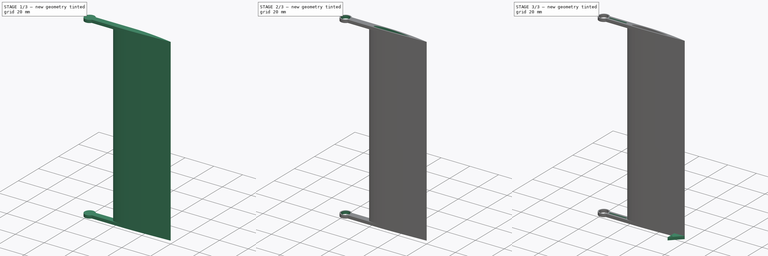
[diagram: build sequence overview — one tinted view per stage of 3, left to right]
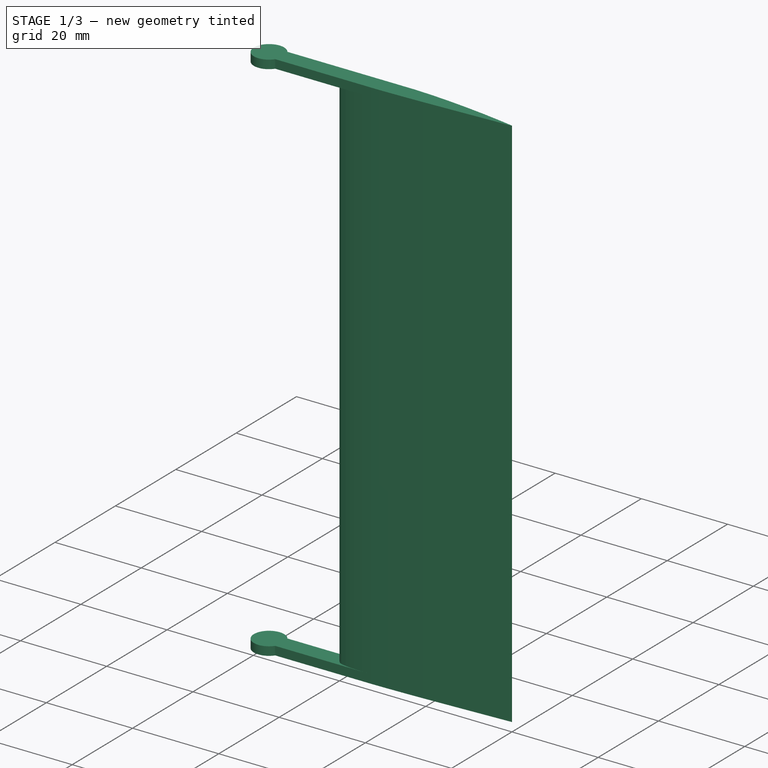
[diagram: stage 1 of 3 — iso view after this stage's code; geometry added in this stage tinted green]
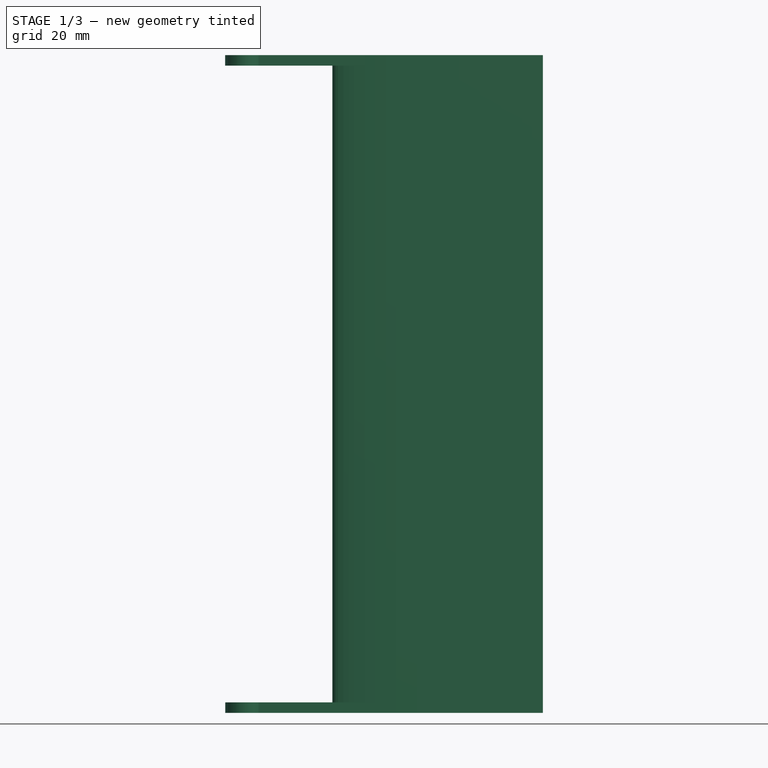
[diagram: stage 1 of 3 — front view after this stage's code; geometry added in this stage tinted green]
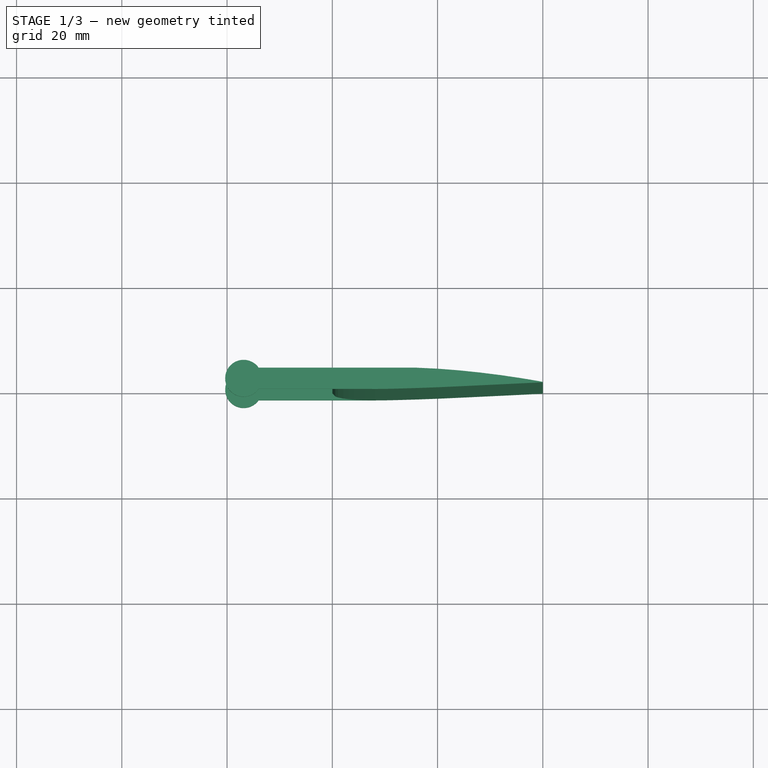
[diagram: stage 1 of 3 — top view after this stage's code; geometry added in this stage tinted green]
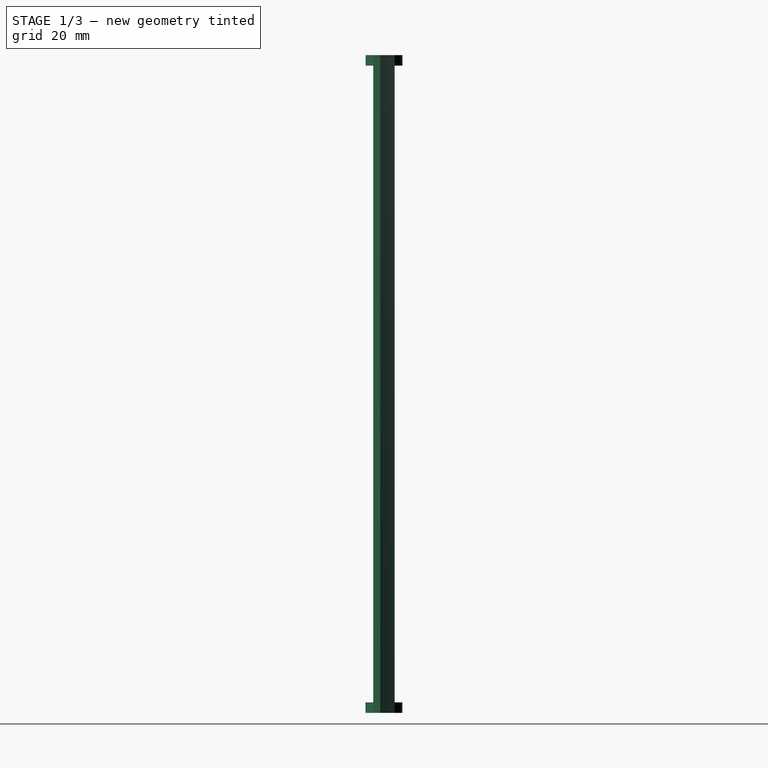
[diagram: stage 1 of 3 — right view after this stage's code; geometry added in this stage tinted green]
FCSTD DOCUMENT  (FreeCAD 0.16R6712 (Git))
Label: Gouverne_Profondeur
License: All rights reserved
LicenseURL: http://en.wikipedia.org/wiki/All_rights_reserved
objects: Sketcher::SketchObject×7, PartDesign::Pad×4, PartDesign::Pocket×4, Part::Part2DObjectPython×1
note: 24 computed .brp shape members not serialized (recipe doc carries the construction recipe); baked Part::Feature solids carry a one-line shape summary decoded from their .brp

FEATURE [Part::Part2DObjectPython] DWire  # Draft 2D object (typed FeaturePython)
  ChamferSize = 0
  Closed = true
  End = (40,-0.042,0)
  FilletRadius = 0
  Length = 81.2543
  MakeFace = true
  Points = (35) [(40,0.042,0),(38.0164,0.396,0),(36.0268,0.7264,0),(32.0388,1.3184,0),(28.0408,1.8204,0),(24.034,2.232,0),(20.0196,2.5424,0),(16,2.7348,0),+27 more]
  Start = (40,0.042,0)
  Subdivisions = 0
FEATURE [PartDesign::Pad] Pad
  Length = 125
  Length2 = 100
  Sketch = -> DWire
  Type = 0
FEATURE [Sketcher::SketchObject] Sketch
  ExternalGeometry = -> [Pad]
  Placement = pos=(0,0,125) rot=(0,0,1;0rad)
  Support = -> Pad [Face37]
  sketch-geometry (4):
    g0: LineSegment StartX=11.95 StartY=2.75 StartZ=0 EndX=-14 EndY=2.75 EndZ=0
    g1: LineSegment StartX=10.0744 StartY=-1.292 StartZ=0 EndX=-14 EndY=-1.292 EndZ=0
    g2: LineSegment StartX=11.95 StartY=2.75 StartZ=0 EndX=10.0744 EndY=-1.292 EndZ=0
    g3: ArcOfCircle CenterX=-16.8575 CenterY=0.729 CenterZ=0 NormalX=0 NormalY=0 NormalZ=1 Radius=3.5 StartAngle=0.615576 EndAngle=5.66761
  constraints (11):
    c: Coincident(g0,g-3)
    c: Horizontal(g0)
    c: Horizontal(g1)
    c: Coincident(g2,g0)
    c: Coincident(g1,g2)
    c: Coincident(g1,g-4)
    c: DistanceX(g1,g-1) = 14
    c: DistanceX(g0,g-1) = 14
    c: Coincident(g3,g0)
    c: Coincident(g3,g1)
    c: Radius(g3) = 3.5
FEATURE [PartDesign::Pad] Pad001
  Length = 2
  Length2 = 100
  Reversed = true
  Sketch = -> Sketch
  Type = 0
FEATURE [Sketcher::SketchObject] Sketch001
  ExternalGeometry = -> [Pad001]
  Placement = pos=(0,0,0) rot=(1,0,0;3.14159rad)
  Support = -> Pad001 [Face4]
  sketch-geometry (4):
    g0: LineSegment StartX=8.0956 StartY=1.3104 StartZ=0 EndX=11.95 EndY=-2.75 EndZ=0
    g1: LineSegment StartX=8.0956 StartY=1.3104 StartZ=0 EndX=-14 EndY=1.3104 EndZ=0
    g2: LineSegment StartX=11.95 StartY=-2.75 StartZ=0 EndX=-14 EndY=-2.75 EndZ=0
    g3: ArcOfCircle CenterX=-16.851 CenterY=-0.7198 CenterZ=0 NormalX=0 NormalY=0 NormalZ=1 Radius=3.5 StartAngle=0.618799 EndAngle=5.66439
  constraints (11):
    c: Coincident(g0,g-3)
    c: Coincident(g0,g-4)
    c: Coincident(g1,g0)
    c: Horizontal(g1)
    c: Coincident(g2,g0)
    c: Horizontal(g2)
    c: DistanceX(g1,g-1) = 14
    c: DistanceX(g2,g-1) = 14
    c: Coincident(g3,g1)
    c: Coincident(g3,g2)
    c: Radius(g3) = 3.5
FEATURE [PartDesign::Pad] Pad002
  Length = 2
  Length2 = 100
  Reversed = true
  Sketch = -> Sketch001
  Type = 0
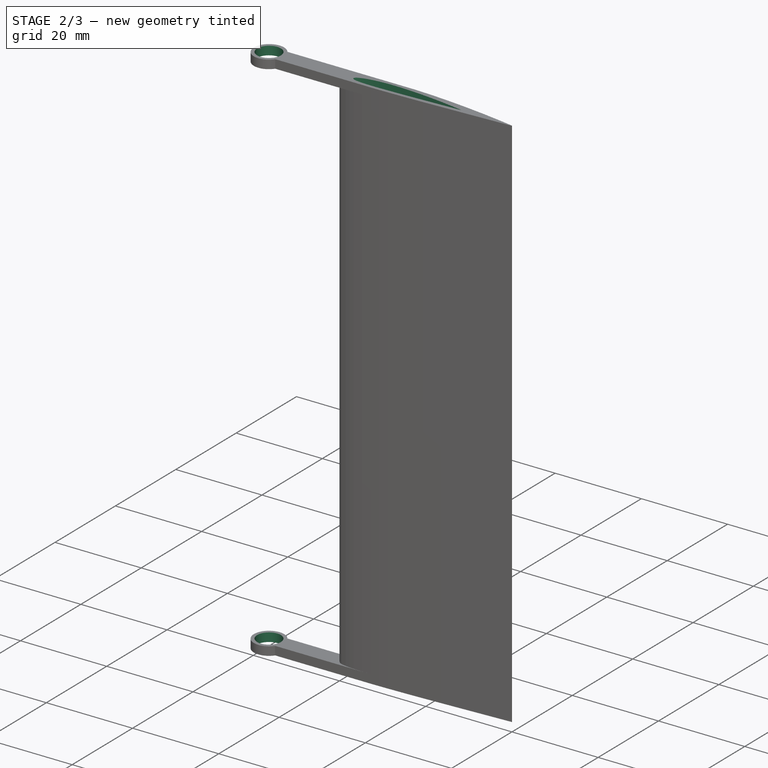
[diagram: stage 2 of 3 — iso view after this stage's code; geometry added in this stage tinted green]
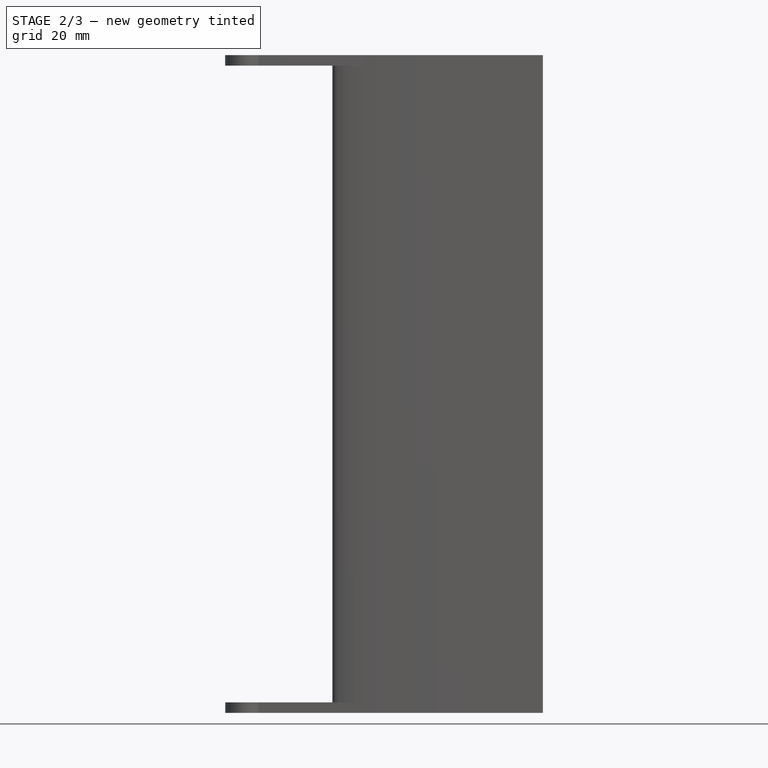
[diagram: stage 2 of 3 — front view after this stage's code; geometry added in this stage tinted green]
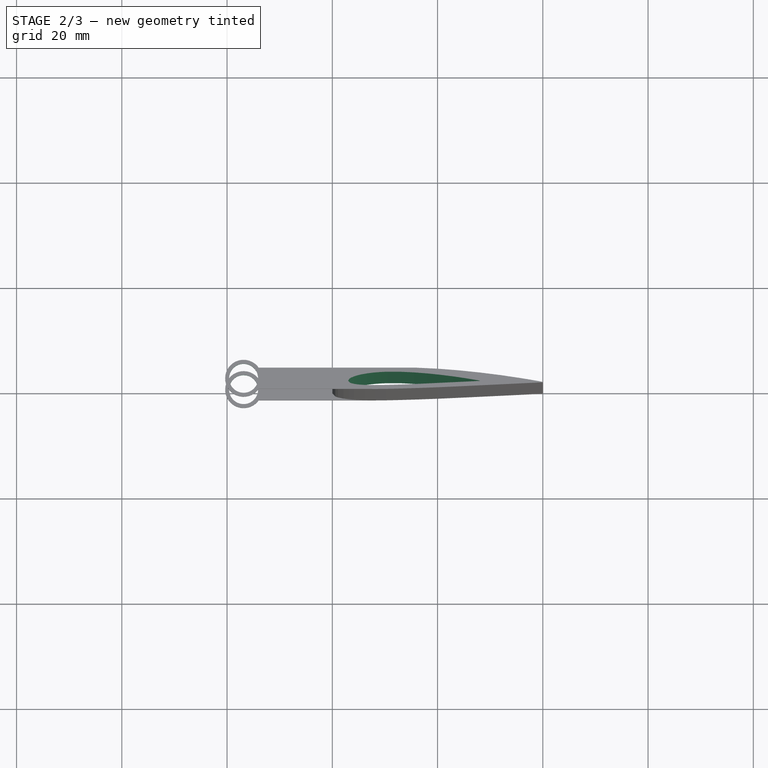
[diagram: stage 2 of 3 — top view after this stage's code; geometry added in this stage tinted green]
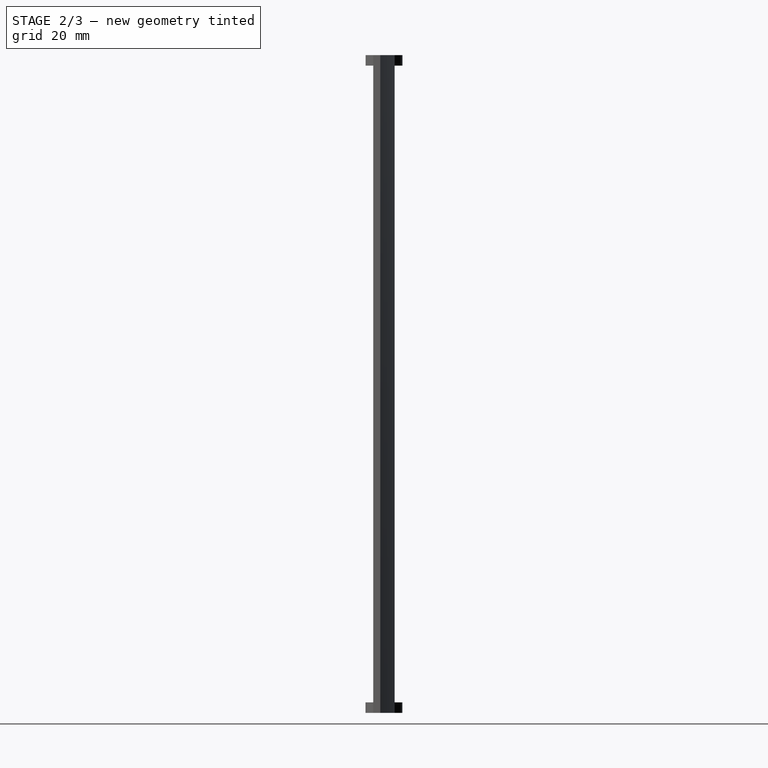
[diagram: stage 2 of 3 — right view after this stage's code; geometry added in this stage tinted green]
FEATURE [Sketcher::SketchObject] Sketch002
  ExternalGeometry = -> [Pad002]
  Placement = pos=(0,0,0) rot=(1,0,0;3.14159rad)
  Support = -> Pad002 [Face27]
  sketch-geometry (1):
    g0: Circle CenterX=-16.851 CenterY=-0.7198 CenterZ=0 NormalX=0 NormalY=0 NormalZ=1 Radius=2.75
  constraints (2):
    c: Coincident(g0,g-3)
    c: Radius(g0) = 2.75
FEATURE [PartDesign::Pocket] Pocket
  Length = 5
  Sketch = -> Sketch002
  Type = 1
FEATURE [Sketcher::SketchObject] Sketch003
  Placement = pos=(0,0,125) rot=(0,0,1;0rad)
  Support = -> Pocket [Face5]
  sketch-geometry (35):
    g0: LineSegment StartX=28 StartY=0.27625 StartZ=0 EndX=26.7602 EndY=0.4975 EndZ=0
    g1: LineSegment StartX=26.7602 StartY=0.4975 StartZ=0 EndX=25.5167 EndY=0.704 EndZ=0
    g2: LineSegment StartX=25.5167 StartY=0.704 StartZ=0 EndX=23.0242 EndY=1.074 EndZ=0
    g3: LineSegment StartX=23.0242 StartY=1.074 StartZ=0 EndX=20.5255 EndY=1.38775 EndZ=0
    g4: LineSegment StartX=20.5255 StartY=1.38775 StartZ=0 EndX=18.0212 EndY=1.645 EndZ=0
    g5: LineSegment StartX=18.0212 StartY=1.645 StartZ=0 EndX=15.5122 EndY=1.839 EndZ=0
    g6: LineSegment StartX=15.5122 StartY=1.839 StartZ=0 EndX=13 EndY=1.95925 EndZ=0
    g7: LineSegment StartX=13 StartY=1.95925 StartZ=0 EndX=10.4688 EndY=1.96875 EndZ=0
    g8: LineSegment StartX=10.4688 StartY=1.96875 StartZ=0 EndX=9.2035 EndY=1.917 EndZ=0
    g9: LineSegment StartX=9.2035 StartY=1.917 StartZ=0 EndX=7.94025 EndY=1.819 EndZ=0
    g10: LineSegment StartX=7.94025 StartY=1.819 StartZ=0 EndX=6.6805 EndY=1.66625 EndZ=0
    g11: LineSegment StartX=6.6805 StartY=1.66625 StartZ=0 EndX=5.4275 EndY=1.4415 EndZ=0
    g12: LineSegment StartX=5.4275 StartY=1.4415 StartZ=0 EndX=4.80425 EndY=1.29225 EndZ=0
    g13: LineSegment StartX=4.80425 StartY=1.29225 StartZ=0 EndX=4.1855 EndY=1.105 EndZ=0
    g14: LineSegment StartX=4.1855 StartY=1.105 StartZ=0 EndX=3.57425 EndY=0.85275 EndZ=0
    g15: LineSegment StartX=3.57425 StartY=0.85275 StartZ=0 EndX=3.2745 EndY=0.6735 EndZ=0
    g16: LineSegment StartX=3.2745 StartY=0.6735 StartZ=0 EndX=3 EndY=0.25 EndZ=0
    g17: LineSegment StartX=3 StartY=0.25 StartZ=0 EndX=3.3505 EndY=-0.112 EndZ=0
    g18: LineSegment StartX=3.3505 StartY=-0.112 StartZ=0 EndX=3.67575 EndY=-0.23175 EndZ=0
    g19: LineSegment StartX=3.67575 StartY=-0.23175 StartZ=0 EndX=4.3145 EndY=-0.3705 EndZ=0
    g20: LineSegment StartX=4.3145 StartY=-0.3705 StartZ=0 EndX=4.94575 EndY=-0.45225 EndZ=0
    g21: LineSegment StartX=4.94575 StartY=-0.45225 StartZ=0 EndX=5.5725 EndY=-0.504 EndZ=0
    g22: LineSegment StartX=5.5725 StartY=-0.504 StartZ=0 EndX=6.8195 EndY=-0.55675 EndZ=0
    g23: LineSegment StartX=6.8195 StartY=-0.55675 StartZ=0 EndX=8.05975 EndY=-0.569 EndZ=0
    g24: LineSegment StartX=8.05975 StartY=-0.569 StartZ=0 EndX=9.2965 EndY=-0.5575 EndZ=0
    g25: LineSegment StartX=9.2965 StartY=-0.5575 StartZ=0 EndX=10.5312 EndY=-0.53125 EndZ=0
    g26: LineSegment StartX=10.5312 StartY=-0.53125 StartZ=0 EndX=13 EndY=-0.45925 EndZ=0
    g27: LineSegment StartX=13 StartY=-0.45925 StartZ=0 EndX=15.4878 EndY=-0.367 EndZ=0
    g28: LineSegment StartX=15.4878 StartY=-0.367 StartZ=0 EndX=17.9788 EndY=-0.256 EndZ=0
    g29: LineSegment StartX=17.9788 StartY=-0.256 StartZ=0 EndX=20.4745 EndY=-0.13775 EndZ=0
    g30: LineSegment StartX=20.4745 StartY=-0.13775 StartZ=0 EndX=22.9758 EndY=-0.0185 EndZ=0
    g31: LineSegment StartX=22.9758 StartY=-0.0185 StartZ=0 EndX=25.4833 EndY=0.1015 EndZ=0
    g32: LineSegment StartX=25.4833 StartY=0.1015 StartZ=0 EndX=26.7398 EndY=0.162 EndZ=0
    g33: LineSegment StartX=26.7398 StartY=0.162 StartZ=0 EndX=28 EndY=0.22375 EndZ=0
    g34: LineSegment StartX=28 StartY=0.22375 StartZ=0 EndX=28 EndY=0.27625 EndZ=0
  constraints (35):
    c: Coincident(g0,g1)
    c: Coincident(g1,g2)
    c: Coincident(g2,g3)
    c: Coincident(g3,g4)
    c: Coincident(g4,g5)
    c: Coincident(g5,g6)
    c: Coincident(g6,g7)
    c: Coincident(g7,g8)
    c: Coincident(g8,g9)
    c: Coincident(g9,g10)
    c: Coincident(g10,g11)
    c: Coincident(g11,g12)
    c: Coincident(g12,g13)
    c: Coincident(g13,g14)
    c: Coincident(g14,g15)
    c: Coincident(g15,g16)
    c: Coincident(g16,g17)
    c: Coincident(g17,g18)
    c: Coincident(g18,g19)
    c: Coincident(g19,g20)
    c: Coincident(g20,g21)
    c: Coincident(g21,g22)
    c: Coincident(g22,g23)
    c: Coincident(g23,g24)
    c: Coincident(g24,g25)
    c: Coincident(g25,g26)
    c: Coincident(g26,g27)
    c: Coincident(g27,g28)
    c: Coincident(g28,g29)
    c: Coincident(g29,g30)
    c: Coincident(g30,g31)
    c: Coincident(g31,g32)
    c: Coincident(g32,g33)
    c: Coincident(g33,g34)
    c: Coincident(g34,g0)
FEATURE [PartDesign::Pocket] Pocket001
  Length = 5
  Sketch = -> Sketch003
  Type = 1
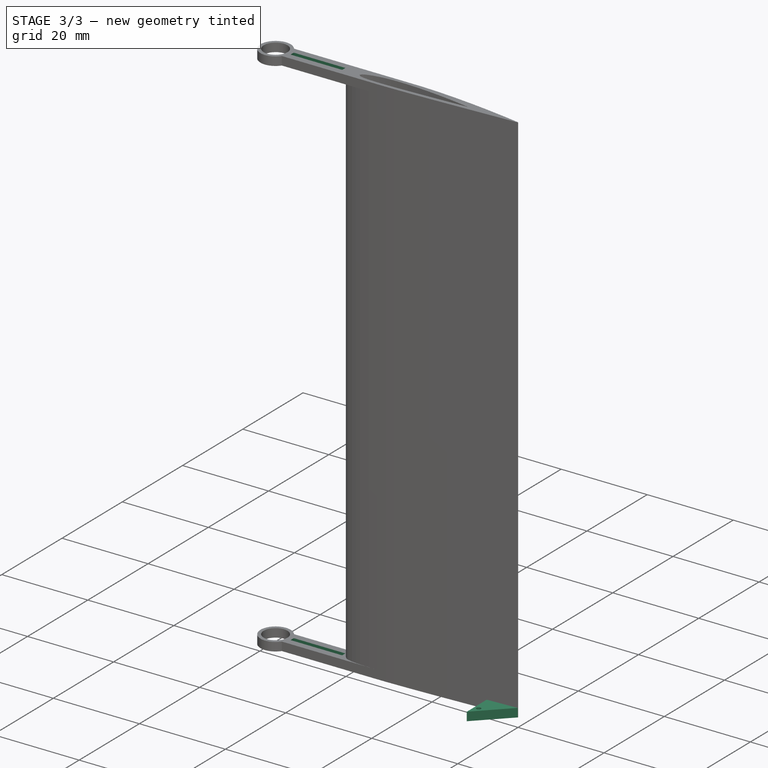
[diagram: stage 3 of 3 — iso view after this stage's code; geometry added in this stage tinted green]
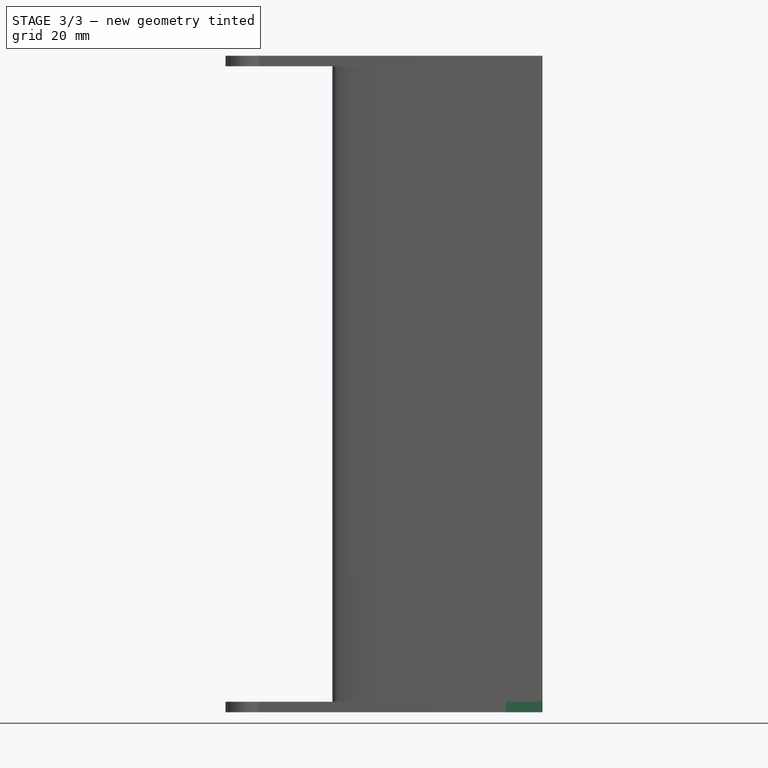
[diagram: stage 3 of 3 — front view after this stage's code; geometry added in this stage tinted green]
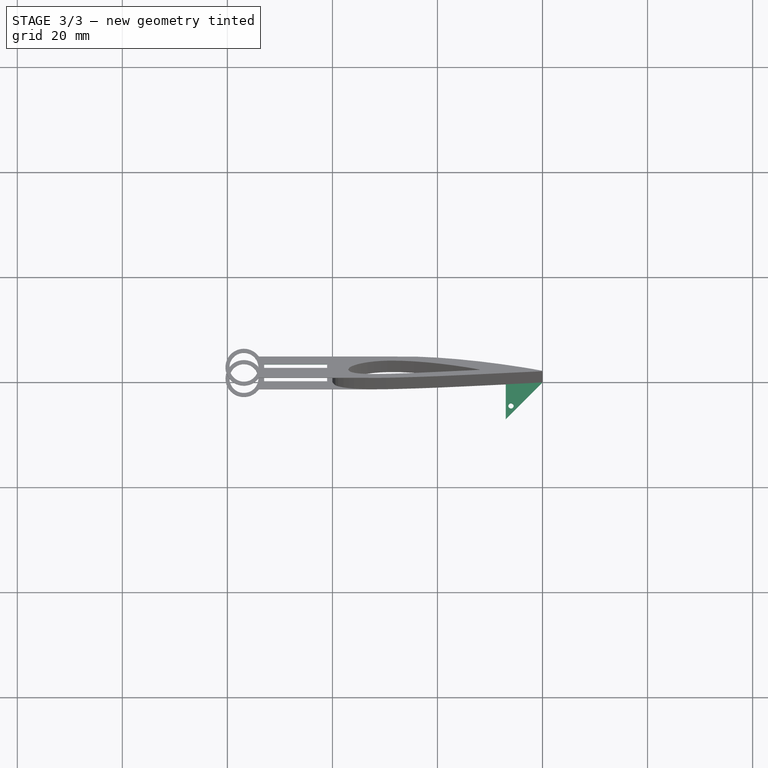
[diagram: stage 3 of 3 — top view after this stage's code; geometry added in this stage tinted green]
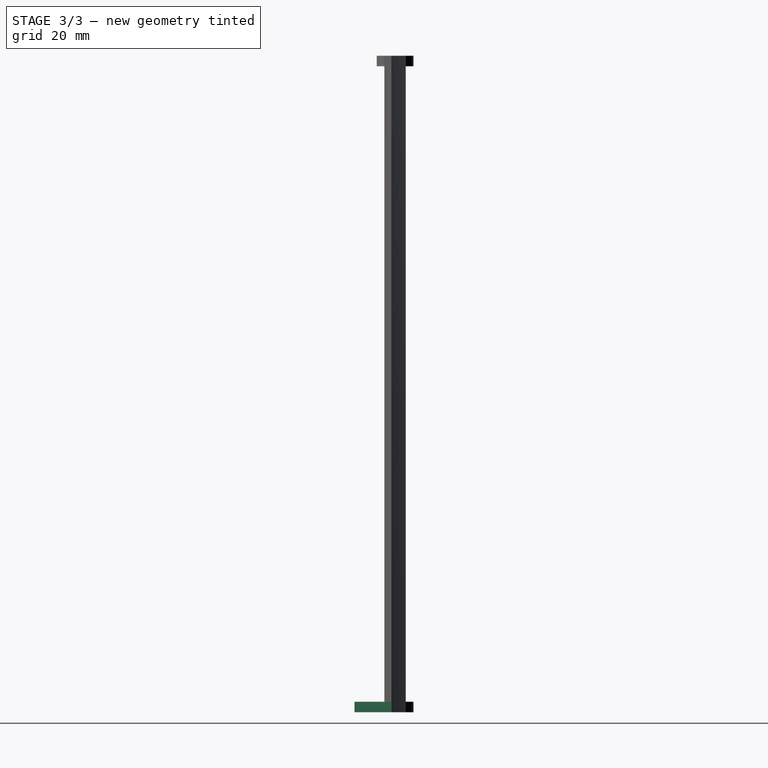
[diagram: stage 3 of 3 — right view after this stage's code; geometry added in this stage tinted green]
FEATURE [Sketcher::SketchObject] Sketch004
  ExternalGeometry = -> [Pocket001]
  Placement = pos=(0,0,0) rot=(1,0,0;3.14159rad)
  Support = -> Pocket001 [Face62]
  sketch-geometry (4):
    g0: LineSegment StartX=-13 StartY=-0.1896 StartZ=0 EndX=-1 EndY=-0.1896 EndZ=0
    g1: LineSegment StartX=-1 StartY=-0.1896 StartZ=0 EndX=-1 EndY=-1.25 EndZ=0
    g2: LineSegment StartX=-1 StartY=-1.25 StartZ=0 EndX=-13 EndY=-1.25 EndZ=0
    g3: LineSegment StartX=-13 StartY=-1.25 StartZ=0 EndX=-13 EndY=-0.1896 EndZ=0
  constraints (12):
    c: Coincident(g0,g1)
    c: Coincident(g1,g2)
    c: Coincident(g2,g3)
    c: Coincident(g3,g0)
    c: Horizontal(g0)
    c: Horizontal(g2)
    c: Vertical(g1)
    c: Vertical(g3)
    c: DistanceY(g-4,g2) = 1.5
    c: DistanceY(g0,g-3) = 1.5
    c: DistanceX(g0,g-1) = 1
    c: DistanceX(g0,g0) = 12
FEATURE [PartDesign::Pocket] Pocket002
  Length = 5
  Sketch = -> Sketch004
  Type = 1
FEATURE [Sketcher::SketchObject] Sketch005
  ExternalGeometry = -> [Pocket002]
  Placement = pos=(0,0,0) rot=(1,0,0;3.14159rad)
  Support = -> Pocket002 [Face4]
  sketch-geometry (3):
    g0: LineSegment StartX=33 StartY=0 StartZ=0 EndX=40 EndY=0 EndZ=0
    g1: LineSegment StartX=40 StartY=0 StartZ=0 EndX=33 EndY=7 EndZ=0
    g2: LineSegment StartX=33 StartY=0 StartZ=0 EndX=33 EndY=7 EndZ=0
  constraints (9):
    c: PointOnObject(g0,g-1)
    c: PointOnObject(g0,g-1)
    c: Coincident(g1,g0)
    c: Coincident(g2,g0)
    c: Coincident(g1,g2)
    c: Vertical(g2)
    c: PointOnObject(g0,g-4)
    c: DistanceY(g2,g2) = 7
    c: DistanceX(g0,g0) = 7
FEATURE [PartDesign::Pad] Pad003
  Length = 2
  Length2 = 100
  Reversed = true
  Sketch = -> Sketch005
  Type = 0
FEATURE [Sketcher::SketchObject] Sketch006
  ExternalGeometry = -> [Pad003]
  Placement = pos=(0,0,0) rot=(1,0,0;3.14159rad)
  Support = -> Pad003 [Face71]
  sketch-geometry (1):
    g0: Circle CenterX=34 CenterY=4.5 CenterZ=0 NormalX=0 NormalY=0 NormalZ=1 Radius=0.5
  constraints (3):
    c: DistanceX(g-3,g0) = 1
    c: DistanceY(g0,g-3) = 2.5
    c: Radius(g0) = 0.5
FEATURE [PartDesign::Pocket] Pocket003
  Length = 5
  Sketch = -> Sketch006
  Type = 1
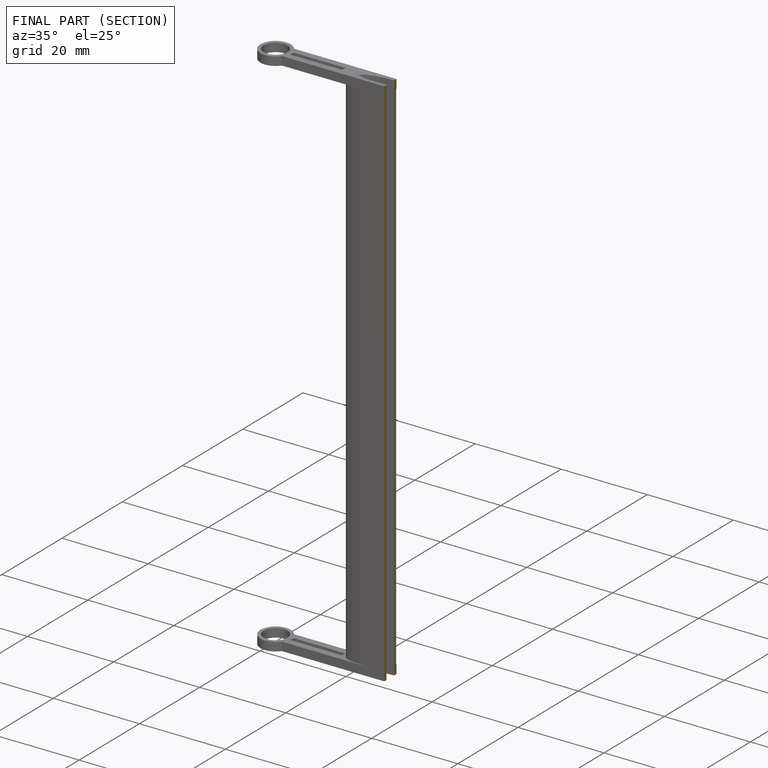
[diagram: finished part — half-section view (interior)]
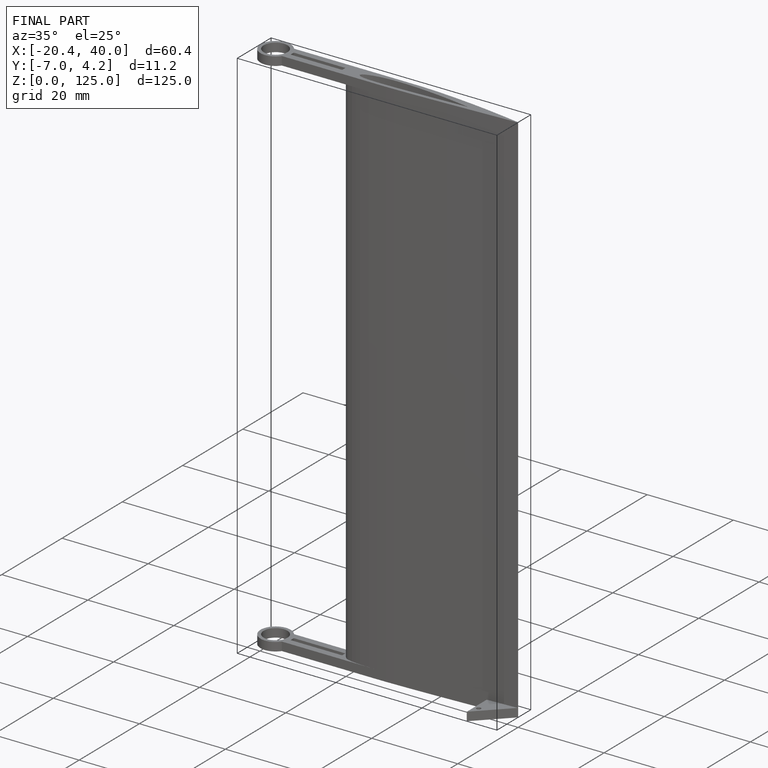
[diagram: finished part — iso view with bounding-box wireframe]
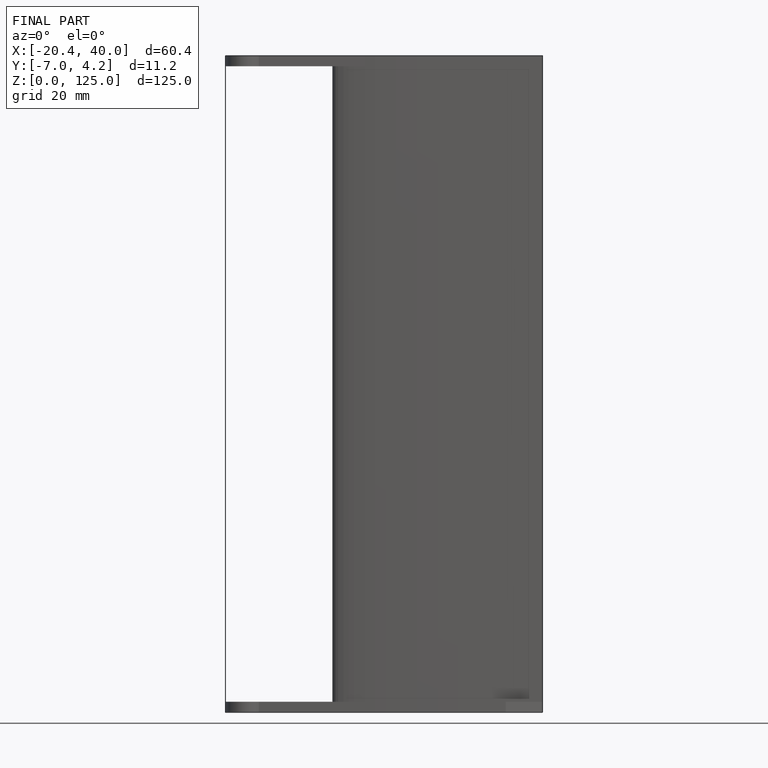
[diagram: finished part — front view with bounding-box wireframe]
